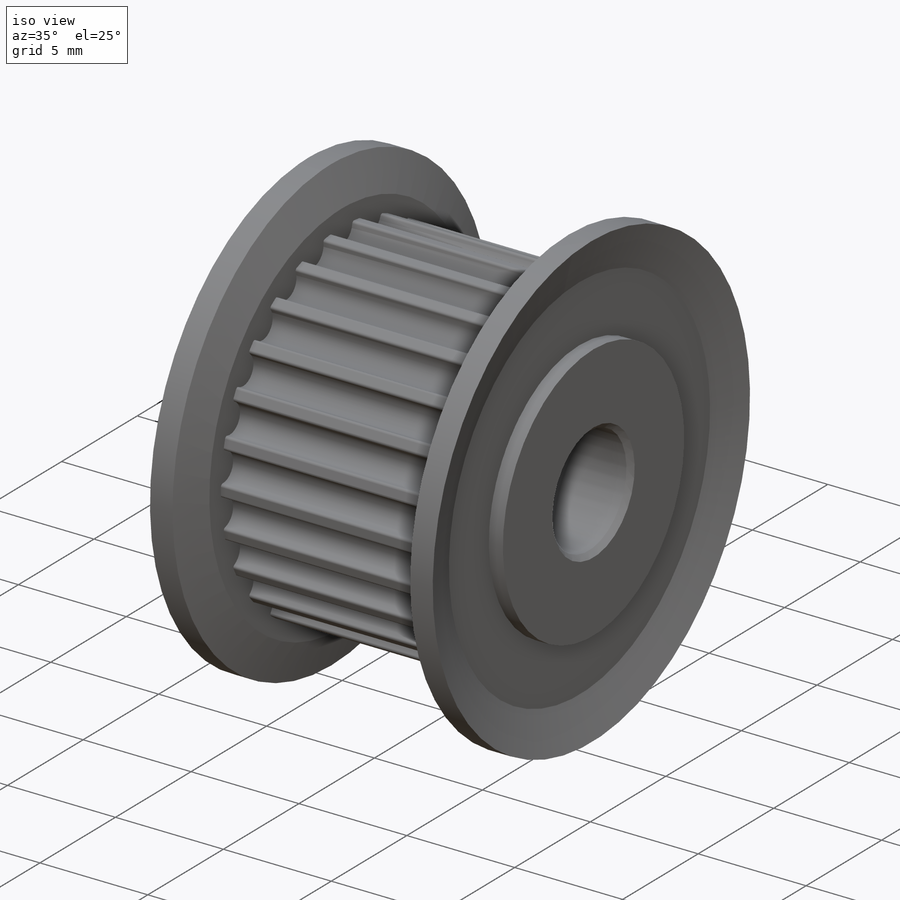
[diagram: iso view]
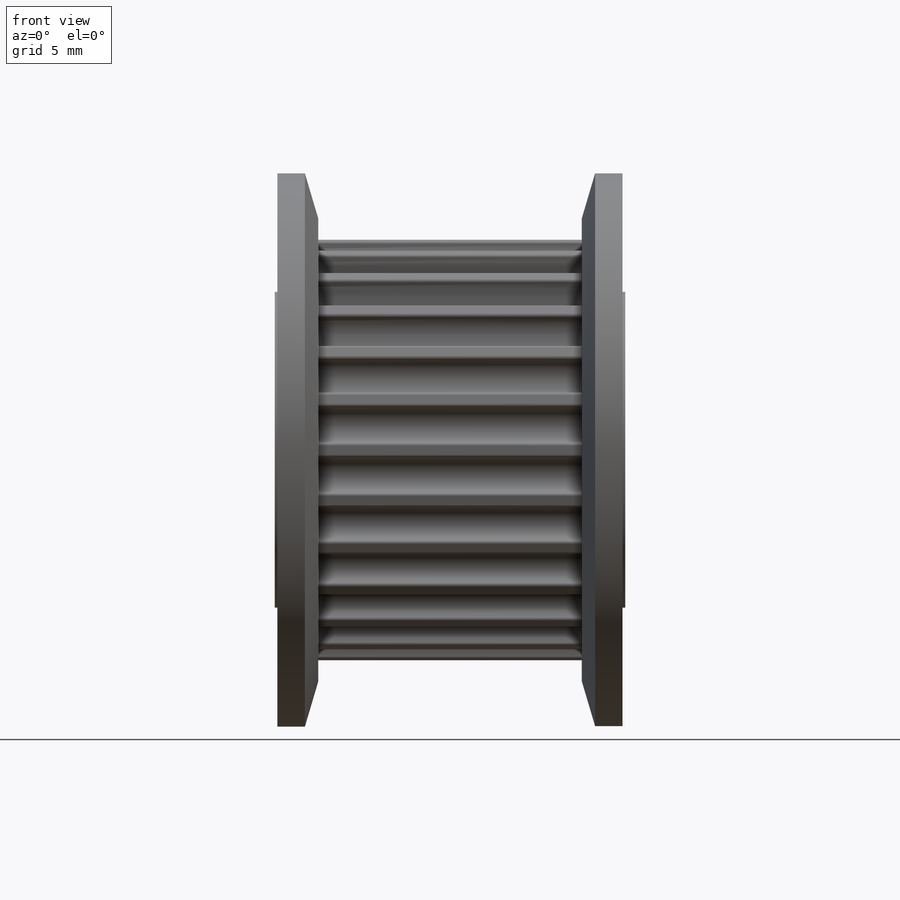
[diagram: front view]
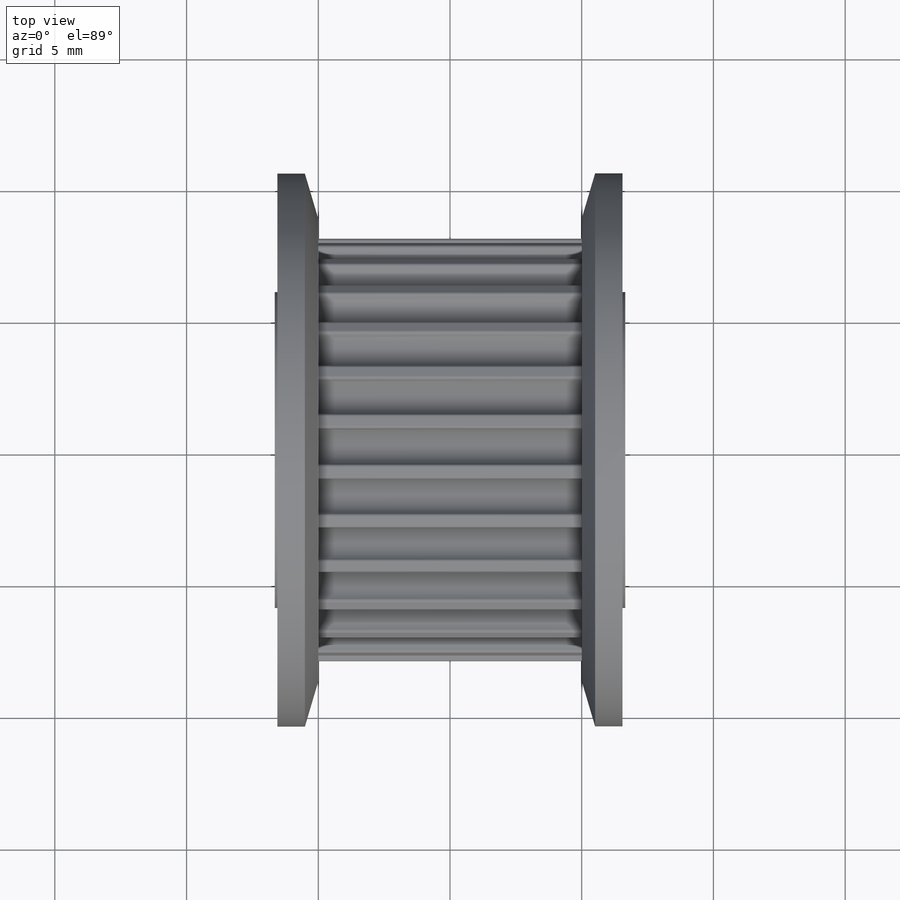
[diagram: top view]
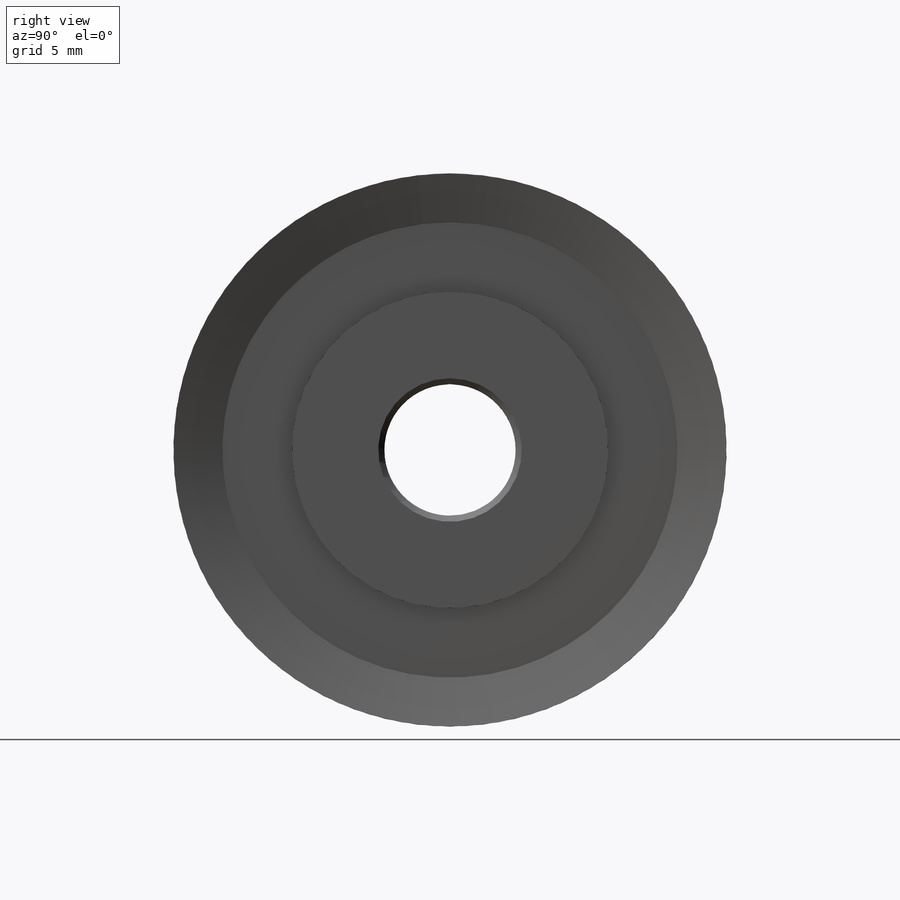
[diagram: right view]
SOLIDWORKS PART (.sldprt)
format: sldprt  version: not decoded by parser v0  size: 471,040 bytes
history: native  units: mm
features: sketch x3, revolve x2, material x1, cut_extrude x1, pattern_circular x1 (+16 scaffold rows collapsed)
feature tree (24):
  scaffold x16  (default folders/planes/origin — collapsed)
  material  "Material <not specified>"
  sketch  "Sketch1"  dims[c1.D1=8.275mm c1.D2=8.02mm c1.D3=0.675mm c1.D4=0.1125mm c1.D5=0.225mm c1.D6=0.225mm c1.D7=12.0mm c1.D8=10.0mm c1.D9=13.3mm c1.D10=16.04mm c1.D11=21.0mm c1.D12=1.0mm c1.D13=1.0mm c1.D14=17.28mm c1.D15=~17.569503mm c1.D16=5.0mm c1.D17=26.5mm c2.D2=7.945mm c2.D17=~1.567563mm c2.D18=~7.86856mm c2.D19=26.5mm]
  revolve  "Revolve1"  Angle=360deg
  sketch  "Sketch5"  dims[c1.D1=8.275mm c1.D2=8.02mm c1.D3=0.675mm c1.D4=0.1125mm c2.D2=8.275mm c2.D5=0.675mm c2.D6=0.1125mm c2.D10=8.02mm c3.D5=0.225mm c3.D6=0.225mm c3.D7=12.0mm c3.D8=10.0mm c3.D9=13.3mm c3.D10=16.04mm c3.D11=21.0mm c3.D12=1.0mm c3.D13=1.0mm c3.D14=17.28mm c3.D15=~17.569503mm c3.D16=5.0mm c3.D17=26.5mm c3.D2=7.945mm c4.D17=~1.567563mm c4.D18=~7.86856mm c4.D19=26.5mm c4.D7=~1.567563mm c4.D8=7.945mm c4.D9=~7.86856mm c4.D3=5.0mm]
  cut_extrude  "Cut-Extrude1"  [1 undecoded]
  pattern_circular  "CirPattern1"  Count=26 Angle=360deg
  revolve  "Revolve2"  [1 undecoded]
  sketch  "Sketch1<4>"  dims[D1=360.0deg]
decode coverage: 5 of 7 modeling features carry decoded parameters
note: ~ marks probable driven/reference dimensions
note: 2 parameter values undecoded
note: suppression state not decoded; provenance and decode notes live in map.json
